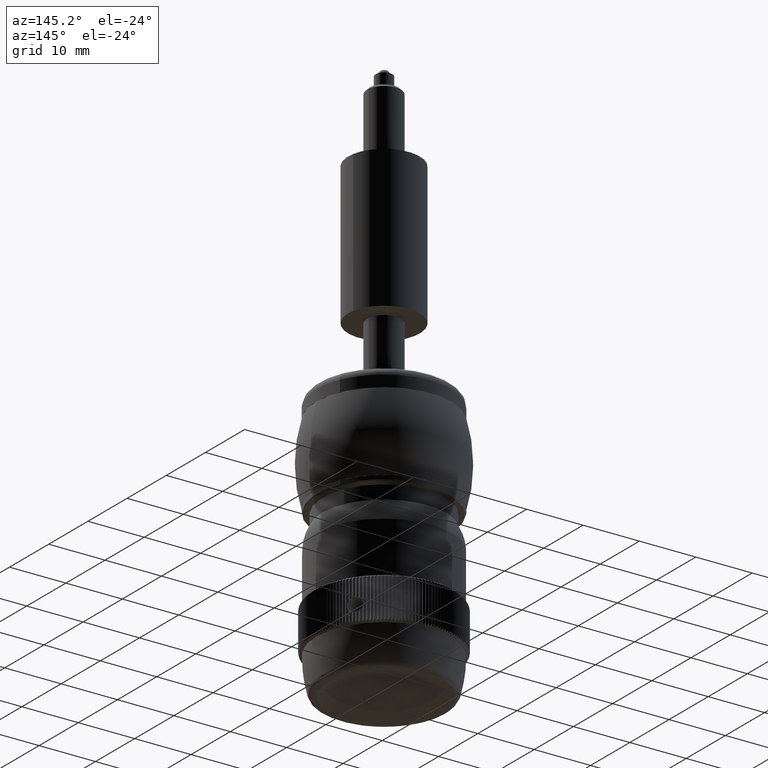
[diagram: clean part render]
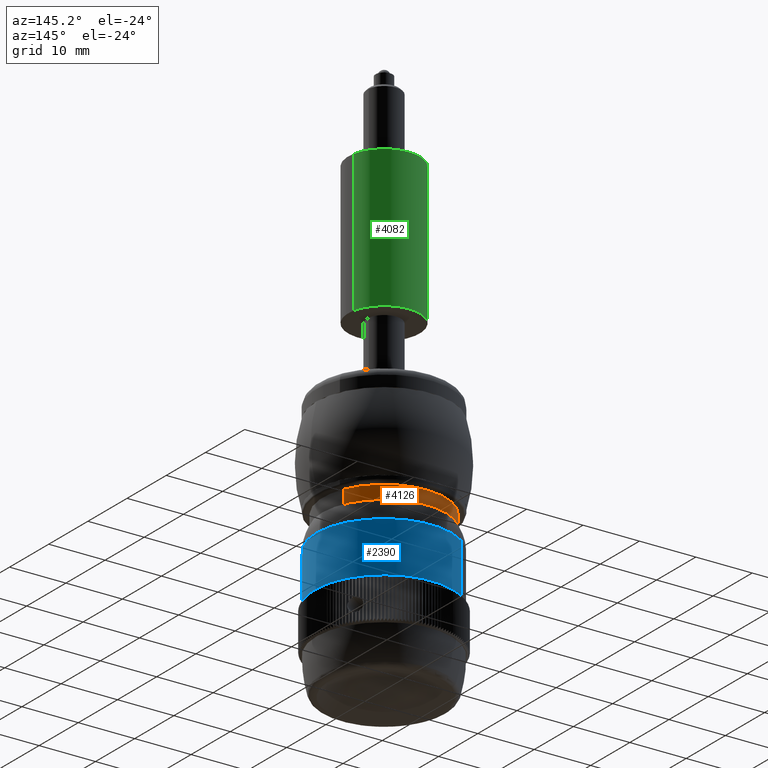
[diagram: same view with three faces highlighted in distinct colors, each labeled with its STEP entity id]
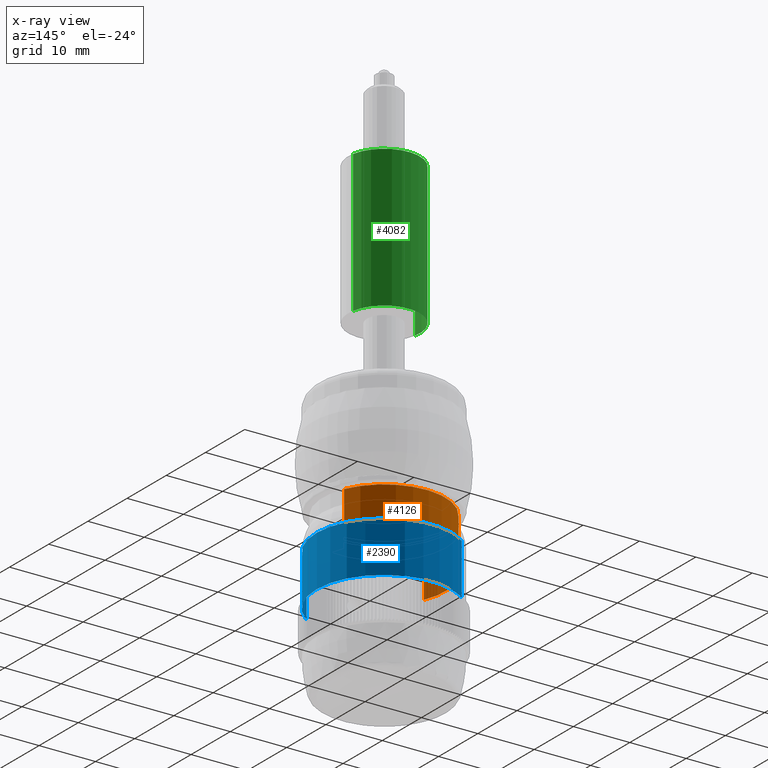
[diagram: x-ray of the same camera — body ghosted, the three highlighted faces saturated]
A machine part, auxiliary view with three faces highlighted in distinct colors.
The next image is the same camera in x-ray (body ghosted, the three faces saturated) — at least one of them is partly hidden behind the body in this view.
Their STEP definitions:

[orange] entity #4126 — the highlighted cylindrical surface (partial cylindrical patch) has radius 10.85 mm, axis along (0, 0, -1).
#4077 = ORIENTED_EDGE ( 'NONE', *, *, #4078, .F. ) ;
#4078 = EDGE_CURVE ( 'NONE', #4123, #4147, #17133, .T. ) ;
#4119 = ORIENTED_EDGE ( 'NONE', *, *, #4120, .F. ) ;
#4120 = EDGE_CURVE ( 'NONE', #4190, #4123, #17318, .T. ) ;
#4123 = VERTEX_POINT ( 'NONE', #17308 ) ;
#4126 = ADVANCED_FACE ( 'NONE', ( #17341 ), #17376, .T. ) ;
#4127 = EDGE_LOOP ( 'NONE', ( #4134, #4186, #4077, #4119 ) ) ;
#4134 = ORIENTED_EDGE ( 'NONE', *, *, #4135, .T. ) ;
#4135 = EDGE_CURVE ( 'NONE', #4190, #4191, #17391, .T. ) ;
#4147 = VERTEX_POINT ( 'NONE', #17426 ) ;
#4186 = ORIENTED_EDGE ( 'NONE', *, *, #4187, .T. ) ;
#4187 = EDGE_CURVE ( 'NONE', #4191, #4147, #17495, .T. ) ;
#4190 = VERTEX_POINT ( 'NONE', #17545 ) ;
#4191 = VERTEX_POINT ( 'NONE', #17544 ) ;
#17130 = DIRECTION ( 'NONE',  ( -0.9215590813441703100, -0.3882381480381457100, 0.0000000000000000000 ) ) ;
#17131 = DIRECTION ( 'NONE',  ( 0.0000000000000000000, 0.0000000000000000000, -1.000000000000000000 ) ) ;
#17132 = AXIS2_PLACEMENT_3D ( 'NONE', #17138, #17131, #17130 ) ;
#17133 = CIRCLE ( 'NONE', #17132, 0.4271653543307086200 ) ;
#17138 = CARTESIAN_POINT ( 'NONE',  ( -0.1372700539044540400, -0.006681459373031536900, -1.855949646548954700 ) ) ;
#17308 = CARTESIAN_POINT ( 'NONE',  ( -0.5309281654235188400, -0.1725233454444441400, -1.855949646548954700 ) ) ;
#17315 = DIRECTION ( 'NONE',  ( 0.0000000000000000000, 0.0000000000000000000, -1.000000000000000000 ) ) ;
#17316 = VECTOR ( 'NONE', #17315, 39.37007874015748100 ) ;
#17317 = CARTESIAN_POINT ( 'NONE',  ( -0.5309281654235188400, -0.1725233454444441400, -1.481933898517458800 ) ) ;
#17318 = LINE ( 'NONE', #17317, #17316 ) ;
#17341 = FACE_OUTER_BOUND ( 'NONE', #4127, .T. ) ;
#17373 = DIRECTION ( 'NONE',  ( -0.9215590813441703100, -0.3882381480381457100, 0.0000000000000000000 ) ) ;
#17374 = DIRECTION ( 'NONE',  ( 0.0000000000000000000, 0.0000000000000000000, -1.000000000000000000 ) ) ;
#17375 = AXIS2_PLACEMENT_3D ( 'NONE', #17378, #17374, #17373 ) ;
#17376 = CYLINDRICAL_SURFACE ( 'NONE', #17375, 0.4271653543307086200 ) ;
#17378 = CARTESIAN_POINT ( 'NONE',  ( -0.1372700539044540400, -0.006681459373031536900, -1.481933898517458800 ) ) ;
#17387 = DIRECTION ( 'NONE',  ( -0.9215590813441703100, -0.3882381480381457100, 0.0000000000000000000 ) ) ;
#17388 = DIRECTION ( 'NONE',  ( 0.0000000000000000000, 0.0000000000000000000, -1.000000000000000000 ) ) ;
#17389 = CARTESIAN_POINT ( 'NONE',  ( -0.1372700539044540400, -0.006681459373031536900, -1.481933898517458800 ) ) ;
#17390 = AXIS2_PLACEMENT_3D ( 'NONE', #17389, #17388, #17387 ) ;
#17391 = CIRCLE ( 'NONE', #17390, 0.4271653543307086200 ) ;
#17426 = CARTESIAN_POINT ( 'NONE',  ( 0.2563880576146107500, 0.1591604266983811200, -1.855949646548954700 ) ) ;
#17494 = CARTESIAN_POINT ( 'NONE',  ( 0.2563880576146107500, 0.1591604266983811200, -1.481933898517458800 ) ) ;
#17495 = LINE ( 'NONE', #17494, #17551 ) ;
#17544 = CARTESIAN_POINT ( 'NONE',  ( 0.2563880576146107500, 0.1591604266983811200, -1.481933898517458800 ) ) ;
#17545 = CARTESIAN_POINT ( 'NONE',  ( -0.5309281654235188400, -0.1725233454444441400, -1.481933898517458800 ) ) ;
#17550 = DIRECTION ( 'NONE',  ( 0.0000000000000000000, 0.0000000000000000000, -1.000000000000000000 ) ) ;
#17551 = VECTOR ( 'NONE', #17550, 39.37007874015748100 ) ;

[blue] entity #2390 — the highlighted cylindrical surface (partial cylindrical patch) has radius 12 mm, axis along (-0, -0, -1).
#2390 = ADVANCED_FACE ( 'NONE', ( #11439 ), #11420, .T. ) ;
#2391 = EDGE_LOOP ( 'NONE', ( #2392, #2446, #2449, #2452 ) ) ;
#2392 = ORIENTED_EDGE ( 'NONE', *, *, #2393, .T. ) ;
#2393 = EDGE_CURVE ( 'NONE', #2394, #2445, #11471, .T. ) ;
#2394 = VERTEX_POINT ( 'NONE', #11466 ) ;
#2445 = VERTEX_POINT ( 'NONE', #11620 ) ;
#2446 = ORIENTED_EDGE ( 'NONE', *, *, #2447, .T. ) ;
#2447 = EDGE_CURVE ( 'NONE', #2445, #2448, #11619, .T. ) ;
#2448 = VERTEX_POINT ( 'NONE', #11615 ) ;
#2449 = ORIENTED_EDGE ( 'NONE', *, *, #2450, .F. ) ;
#2450 = EDGE_CURVE ( 'NONE', #2451, #2448, #11674, .T. ) ;
#2451 = VERTEX_POINT ( 'NONE', #11669 ) ;
#2452 = ORIENTED_EDGE ( 'NONE', *, *, #2453, .F. ) ;
#2453 = EDGE_CURVE ( 'NONE', #2394, #2451, #11668, .T. ) ;
#11417 = DIRECTION ( 'NONE',  ( -0.5769951577233285400, 0.8167475668551643600, 0.0000000000000000000 ) ) ;
#11418 = DIRECTION ( 'NONE',  ( -1.392889126570072000E-016, -3.584650618268070600E-017, -1.000000000000000000 ) ) ;
#11419 = AXIS2_PLACEMENT_3D ( 'NONE', #11421, #11418, #11417 ) ;
#11420 = CYLINDRICAL_SURFACE ( 'NONE', #11419, 0.4724409448818898700 ) ;
#11421 = CARTESIAN_POINT ( 'NONE',  ( -0.1372700539044537600, -0.006681459373031536900, -2.629863746663803100 ) ) ;
#11439 = FACE_OUTER_BOUND ( 'NONE', #2391, .T. ) ;
#11466 = CARTESIAN_POINT ( 'NONE',  ( -0.4098661914115381800, 0.3791835328420067900, -1.716477919892149400 ) ) ;
#11467 = DIRECTION ( 'NONE',  ( -0.5769951577233285400, 0.8167475668551643600, 0.0000000000000000000 ) ) ;
#11468 = DIRECTION ( 'NONE',  ( -1.392889126570072000E-016, -3.584650618268070600E-017, -1.000000000000000000 ) ) ;
#11469 = CARTESIAN_POINT ( 'NONE',  ( -0.1372700539044537600, -0.006681459373031536900, -1.716477919892149400 ) ) ;
#11470 = AXIS2_PLACEMENT_3D ( 'NONE', #11469, #11468, #11467 ) ;
#11471 = CIRCLE ( 'NONE', #11470, 0.4724409448818898100 ) ;
#11615 = CARTESIAN_POINT ( 'NONE',  ( 0.1353260836026306800, -0.3925464515880697800, -2.070808628553567000 ) ) ;
#11616 = DIRECTION ( 'NONE',  ( -1.392889126570072000E-016, -3.584650618268070600E-017, -1.000000000000000000 ) ) ;
#11617 = VECTOR ( 'NONE', #11616, 39.37007874015748100 ) ;
#11618 = CARTESIAN_POINT ( 'NONE',  ( 0.1353260836026306800, -0.3925464515880699400, -2.629863746663803100 ) ) ;
#11619 = LINE ( 'NONE', #11618, #11617 ) ;
#11620 = CARTESIAN_POINT ( 'NONE',  ( 0.1353260836026306500, -0.3925464515880697800, -1.716477919892149400 ) ) ;
#11665 = DIRECTION ( 'NONE',  ( -1.392889126570072000E-016, -3.584650618268070600E-017, -1.000000000000000000 ) ) ;
#11666 = VECTOR ( 'NONE', #11665, 39.37007874015748100 ) ;
#11667 = CARTESIAN_POINT ( 'NONE',  ( -0.4098661914115381800, 0.3791835328420068400, -2.629863746663803100 ) ) ;
#11668 = LINE ( 'NONE', #11667, #11666 ) ;
#11669 = CARTESIAN_POINT ( 'NONE',  ( -0.4098661914115381800, 0.3791835328420068400, -2.070808628553567000 ) ) ;
#11670 = DIRECTION ( 'NONE',  ( -0.5769951577233285400, 0.8167475668551643600, 0.0000000000000000000 ) ) ;
#11671 = DIRECTION ( 'NONE',  ( -1.392889126570072000E-016, -3.584650618268070600E-017, -1.000000000000000000 ) ) ;
#11672 = CARTESIAN_POINT ( 'NONE',  ( -0.1372700539044537600, -0.006681459373031536900, -2.070808628553567000 ) ) ;
#11673 = AXIS2_PLACEMENT_3D ( 'NONE', #11672, #11671, #11670 ) ;
#11674 = CIRCLE ( 'NONE', #11673, 0.4724409448818898700 ) ;

[green] entity #4082 — the highlighted cylindrical surface (partial cylindrical patch) has radius 6.35 mm, axis along (0, 0, 1).
#4042 = EDGE_CURVE ( 'NONE', #4101, #4109, #16989, .T. ) ;
#4043 = ORIENTED_EDGE ( 'NONE', *, *, #4044, .F. ) ;
#4044 = EDGE_CURVE ( 'NONE', #4101, #4085, #16990, .T. ) ;
#4079 = VERTEX_POINT ( 'NONE', #17129 ) ;
#4082 = ADVANCED_FACE ( 'NONE', ( #17172 ), #17206, .T. ) ;
#4083 = EDGE_LOOP ( 'NONE', ( #4094, #4087, #4084, #4043 ) ) ;
#4084 = ORIENTED_EDGE ( 'NONE', *, *, #4088, .F. ) ;
#4085 = VERTEX_POINT ( 'NONE', #17202 ) ;
#4087 = ORIENTED_EDGE ( 'NONE', *, *, #4102, .T. ) ;
#4088 = EDGE_CURVE ( 'NONE', #4085, #4079, #17235, .T. ) ;
#4094 = ORIENTED_EDGE ( 'NONE', *, *, #4042, .T. ) ;
#4101 = VERTEX_POINT ( 'NONE', #17213 ) ;
#4102 = EDGE_CURVE ( 'NONE', #4109, #4079, #17212, .T. ) ;
#4109 = VERTEX_POINT ( 'NONE', #17256 ) ;
#16982 = DIRECTION ( 'NONE',  ( 0.0000000000000000000, 0.0000000000000000000, 1.000000000000000000 ) ) ;
#16983 = VECTOR ( 'NONE', #16982, 39.37007874015748100 ) ;
#16984 = CARTESIAN_POINT ( 'NONE',  ( 0.1087874421418245900, 0.03754193533424392300, -0.2811464969426555300 ) ) ;
#16985 = DIRECTION ( 'NONE',  ( 0.9842299841851152000, 0.1768935788291017600, 0.0000000000000000000 ) ) ;
#16986 = DIRECTION ( 'NONE',  ( 0.0000000000000000000, 0.0000000000000000000, 1.000000000000000000 ) ) ;
#16987 = CARTESIAN_POINT ( 'NONE',  ( -0.1372700539044543200, -0.006681459373031536900, -0.2811464969426555300 ) ) ;
#16988 = AXIS2_PLACEMENT_3D ( 'NONE', #16987, #16986, #16985 ) ;
#16989 = CIRCLE ( 'NONE', #16988, 0.2500000000000001100 ) ;
#16990 = LINE ( 'NONE', #16984, #16983 ) ;
#17129 = CARTESIAN_POINT ( 'NONE',  ( -0.3833275499507332600, -0.05090485408030698300, 0.7031054715612815600 ) ) ;
#17153 = CARTESIAN_POINT ( 'NONE',  ( -0.1372700539044543200, -0.006681459373031536900, -0.2811464969426555300 ) ) ;
#17172 = FACE_OUTER_BOUND ( 'NONE', #4083, .T. ) ;
#17202 = CARTESIAN_POINT ( 'NONE',  ( 0.1087874421418246100, 0.03754193533424392300, 0.7031054715612815600 ) ) ;
#17203 = DIRECTION ( 'NONE',  ( 0.9842299841851152000, 0.1768935788291017600, 0.0000000000000000000 ) ) ;
#17204 = DIRECTION ( 'NONE',  ( 0.0000000000000000000, 0.0000000000000000000, 1.000000000000000000 ) ) ;
#17205 = AXIS2_PLACEMENT_3D ( 'NONE', #17153, #17204, #17203 ) ;
#17206 = CYLINDRICAL_SURFACE ( 'NONE', #17205, 0.2500000000000001100 ) ;
#17209 = DIRECTION ( 'NONE',  ( 0.0000000000000000000, 0.0000000000000000000, 1.000000000000000000 ) ) ;
#17210 = VECTOR ( 'NONE', #17209, 39.37007874015748100 ) ;
#17211 = CARTESIAN_POINT ( 'NONE',  ( -0.3833275499507332600, -0.05090485408030697600, -0.2811464969426555300 ) ) ;
#17212 = LINE ( 'NONE', #17211, #17210 ) ;
#17213 = CARTESIAN_POINT ( 'NONE',  ( 0.1087874421418246100, 0.03754193533424392300, -0.2811464969426555300 ) ) ;
#17231 = DIRECTION ( 'NONE',  ( 0.9842299841851152000, 0.1768935788291017600, 0.0000000000000000000 ) ) ;
#17232 = DIRECTION ( 'NONE',  ( 0.0000000000000000000, 0.0000000000000000000, 1.000000000000000000 ) ) ;
#17233 = CARTESIAN_POINT ( 'NONE',  ( -0.1372700539044543200, -0.006681459373031536900, 0.7031054715612815600 ) ) ;
#17234 = AXIS2_PLACEMENT_3D ( 'NONE', #17233, #17232, #17231 ) ;
#17235 = CIRCLE ( 'NONE', #17234, 0.2500000000000001100 ) ;
#17256 = CARTESIAN_POINT ( 'NONE',  ( -0.3833275499507332600, -0.05090485408030698300, -0.2811464969426555300 ) ) ;